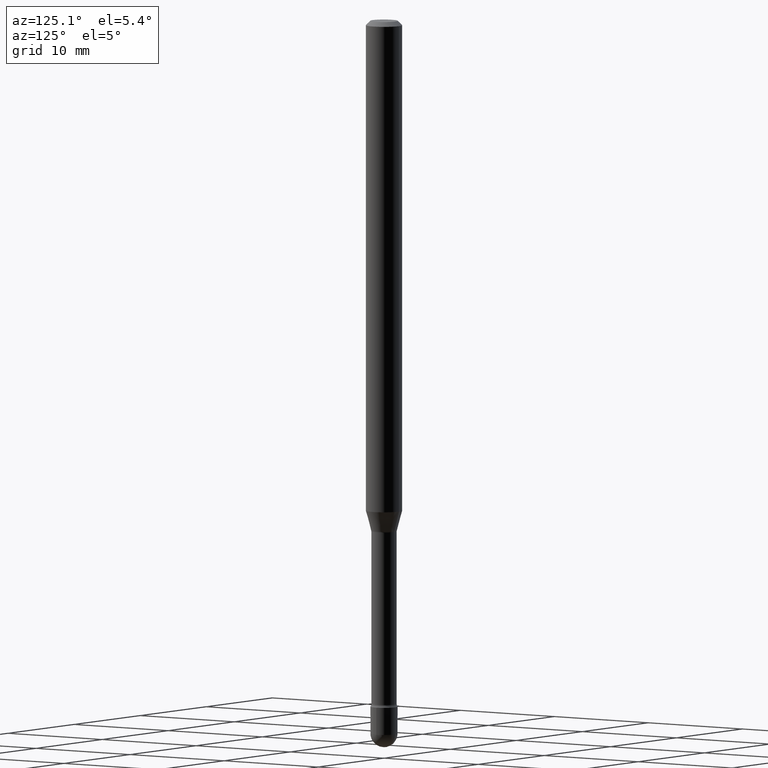
[diagram: clean part render]
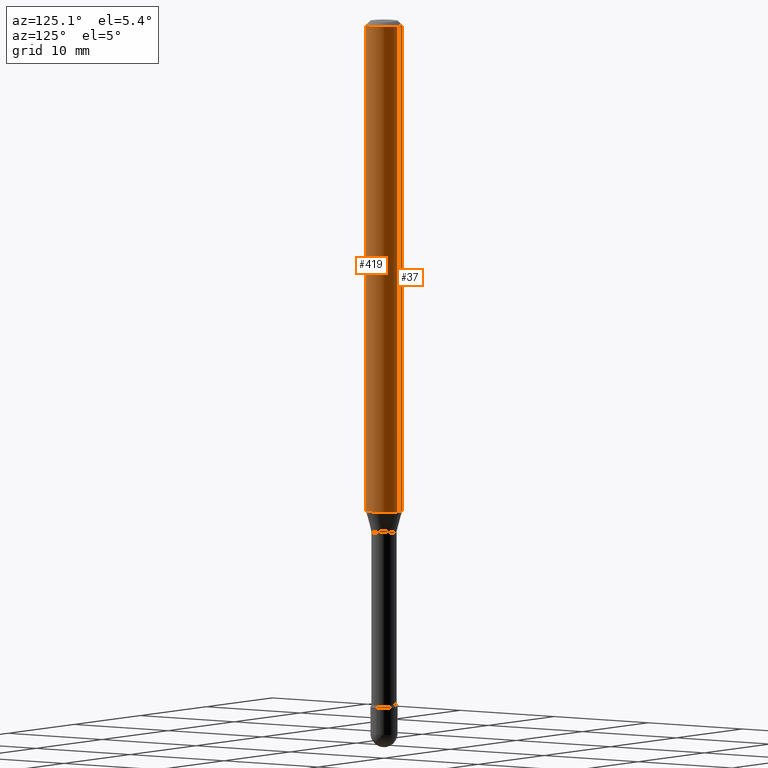
[diagram: same view with one multi-face feature highlighted, each face labeled with its STEP entity id]
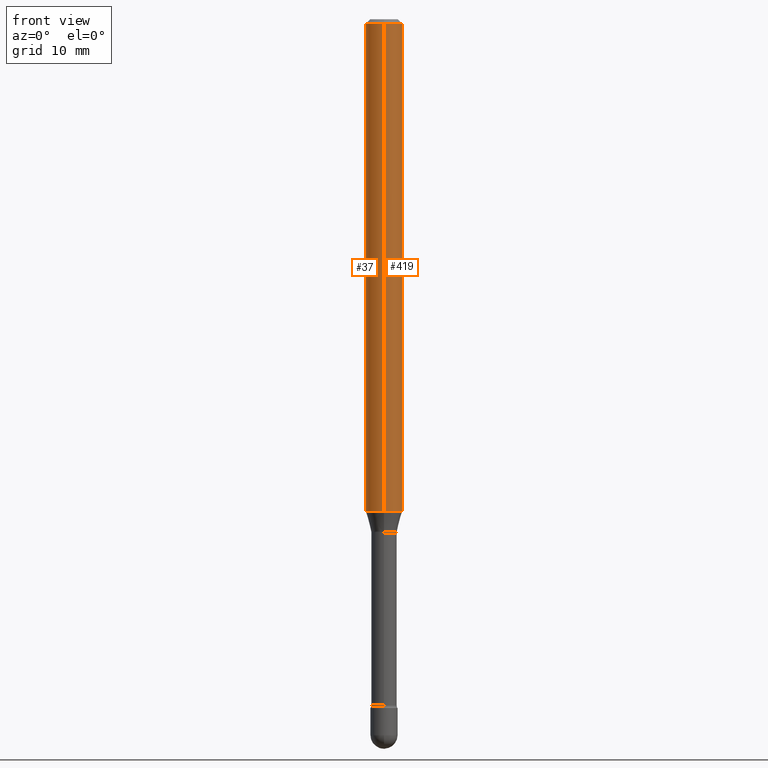
[diagram: same view with one multi-face feature highlighted, each face labeled with its STEP entity id]
A machine part, auxiliary view. The highlighted faces form ONE feature: a constant-radius fillet chain: 2 tangent blend faces with common blend radius 1.5875 mm. The faces share edges in the B-rep.
A second angle (front view) of the same feature is appended — it is thin or edge-on in the first view.
Their STEP definitions:
[1] entity #419 (Cylinder):
#15 = VERTEX_POINT ( 'NONE', #286 ) ;
#35 = DIRECTION ( 'NONE',  ( -2.445464837296052418E-29, 3.491487022518209281E-15, 1.000000000000000000 ) ) ;
#36 = DIRECTION ( 'NONE',  ( -2.445464837296052418E-29, 3.491487022518209281E-15, 1.000000000000000000 ) ) ;
#41 = DIRECTION ( 'NONE',  ( -6.982962677686265922E-15, -1.000000000000000000, 3.491487022518209281E-15 ) ) ;
#66 = EDGE_CURVE ( 'NONE', #345, #263, #504, .T. ) ;
#70 = CARTESIAN_POINT ( 'NONE',  ( 4.440892098501039328E-16, 0.06249999999999414357, -1.685837444817705588 ) ) ;
#75 = CARTESIAN_POINT ( 'NONE',  ( -4.364351673553916201E-16, -0.06250000000000000000, 6.962913377986341187E-16 ) ) ;
#79 = VECTOR ( 'NONE', #239, 39.37007874015748143 ) ;
#86 = CARTESIAN_POINT ( 'NONE',  ( -1.169113584055446105E-44, 1.669184350826100908E-30, 4.780733988912460139E-16 ) ) ;
#93 = CARTESIAN_POINT ( 'NONE',  ( 4.440892098501040314E-16, 0.06249999999999993755, -0.01500000000000030129 ) ) ;
#103 = VERTEX_POINT ( 'NONE', #93 ) ;
#110 = AXIS2_PLACEMENT_3D ( 'NONE', #155, #35, #115 ) ;
#115 = DIRECTION ( 'NONE',  ( -6.982962677686265922E-15, -1.000000000000000000, 3.483106191921935554E-15 ) ) ;
#116 = ORIENTED_EDGE ( 'NONE', *, *, #448, .T. ) ;
#118 = CARTESIAN_POINT ( 'NONE',  ( -4.364351673553502049E-16, -0.06250000000000584255, -1.685837444817705144 ) ) ;
#128 = DIRECTION ( 'NONE',  ( -6.982962677686265922E-15, -1.000000000000000000, 4.370956789862821150E-15 ) ) ;
#130 = FACE_OUTER_BOUND ( 'NONE', #221, .T. ) ;
#155 = CARTESIAN_POINT ( 'NONE',  ( 3.668197255944098613E-31, -5.237230533777343209E-17, -0.01500000000000008271 ) ) ;
#158 = DIRECTION ( 'NONE',  ( -2.445464837296052418E-29, 3.491487022518209281E-15, 1.000000000000000000 ) ) ;
#171 = ORIENTED_EDGE ( 'NONE', *, *, #466, .F. ) ;
#221 = EDGE_LOOP ( 'NONE', ( #491, #116, #171, #521 ) ) ;
#239 = DIRECTION ( 'NONE',  ( -2.445464837296052418E-29, 3.491487022518209281E-15, 1.000000000000000000 ) ) ;
#242 = VECTOR ( 'NONE', #158, 39.37007874015748143 ) ;
#263 = VERTEX_POINT ( 'NONE', #70 ) ;
#286 = CARTESIAN_POINT ( 'NONE',  ( -4.364351673553912750E-16, -0.06250000000000005551, -0.01499999999999986587 ) ) ;
#311 = EDGE_CURVE ( 'NONE', #345, #15, #415, .T. ) ;
#319 = AXIS2_PLACEMENT_3D ( 'NONE', #566, #36, #128 ) ;
#326 = AXIS2_PLACEMENT_3D ( 'NONE', #86, #470, #41 ) ;
#334 = CARTESIAN_POINT ( 'NONE',  ( 4.440892098500625669E-16, 0.06250000000000000000, 2.598554599838579585E-16 ) ) ;
#345 = VERTEX_POINT ( 'NONE', #118 ) ;
#415 = LINE ( 'NONE', #75, #79 ) ;
#419 = ADVANCED_FACE ( 'NONE', ( #130 ), #478, .T. ) ;
#448 = EDGE_CURVE ( 'NONE', #263, #103, #555, .T. ) ;
#466 = EDGE_CURVE ( 'NONE', #15, #103, #544, .T. ) ;
#470 = DIRECTION ( 'NONE',  ( -2.445464837296052418E-29, 3.491487022518209281E-15, 1.000000000000000000 ) ) ;
#478 = CYLINDRICAL_SURFACE ( 'NONE', #326, 0.06250000000000000000 ) ;
#491 = ORIENTED_EDGE ( 'NONE', *, *, #66, .T. ) ;
#504 = CIRCLE ( 'NONE', #319, 0.06250000000000000000 ) ;
#521 = ORIENTED_EDGE ( 'NONE', *, *, #311, .F. ) ;
#544 = CIRCLE ( 'NONE', #110, 0.06250000000000000000 ) ;
#555 = LINE ( 'NONE', #334, #242 ) ;
#566 = CARTESIAN_POINT ( 'NONE',  ( 4.122656192698722490E-29, -5.886079560656275937E-15, -1.685837444817705366 ) ) ;
[2] entity #37 (Cylinder):
#15 = VERTEX_POINT ( 'NONE', #286 ) ;
#37 = ADVANCED_FACE ( 'NONE', ( #106 ), #444, .T. ) ;
#59 = AXIS2_PLACEMENT_3D ( 'NONE', #274, #153, #543 ) ;
#65 = CIRCLE ( 'NONE', #59, 0.06250000000000000000 ) ;
#70 = CARTESIAN_POINT ( 'NONE',  ( 4.440892098501039328E-16, 0.06249999999999414357, -1.685837444817705588 ) ) ;
#75 = CARTESIAN_POINT ( 'NONE',  ( -4.364351673553916201E-16, -0.06250000000000000000, 6.962913377986341187E-16 ) ) ;
#79 = VECTOR ( 'NONE', #239, 39.37007874015748143 ) ;
#93 = CARTESIAN_POINT ( 'NONE',  ( 4.440892098501040314E-16, 0.06249999999999993755, -0.01500000000000030129 ) ) ;
#101 = ORIENTED_EDGE ( 'NONE', *, *, #379, .T. ) ;
#103 = VERTEX_POINT ( 'NONE', #93 ) ;
#106 = FACE_OUTER_BOUND ( 'NONE', #425, .T. ) ;
#118 = CARTESIAN_POINT ( 'NONE',  ( -4.364351673553502049E-16, -0.06250000000000584255, -1.685837444817705144 ) ) ;
#125 = DIRECTION ( 'NONE',  ( -2.445464837296052418E-29, 3.491487022518209281E-15, 1.000000000000000000 ) ) ;
#153 = DIRECTION ( 'NONE',  ( -2.445464837296052418E-29, 3.491487022518209281E-15, 1.000000000000000000 ) ) ;
#158 = DIRECTION ( 'NONE',  ( -2.445464837296052418E-29, 3.491487022518209281E-15, 1.000000000000000000 ) ) ;
#211 = ORIENTED_EDGE ( 'NONE', *, *, #311, .T. ) ;
#228 = DIRECTION ( 'NONE',  ( -6.982962677686265922E-15, -1.000000000000000000, 3.491487022518209281E-15 ) ) ;
#236 = CARTESIAN_POINT ( 'NONE',  ( -1.169113584055446105E-44, 1.669184350826100908E-30, 4.780733988912460139E-16 ) ) ;
#239 = DIRECTION ( 'NONE',  ( -2.445464837296052418E-29, 3.491487022518209281E-15, 1.000000000000000000 ) ) ;
#242 = VECTOR ( 'NONE', #158, 39.37007874015748143 ) ;
#263 = VERTEX_POINT ( 'NONE', #70 ) ;
#266 = ORIENTED_EDGE ( 'NONE', *, *, #448, .F. ) ;
#274 = CARTESIAN_POINT ( 'NONE',  ( 3.668197255944098613E-31, -5.237230533777343209E-17, -0.01500000000000008271 ) ) ;
#280 = DIRECTION ( 'NONE',  ( -2.445464837296052418E-29, 3.491487022518209281E-15, 1.000000000000000000 ) ) ;
#282 = AXIS2_PLACEMENT_3D ( 'NONE', #236, #280, #228 ) ;
#286 = CARTESIAN_POINT ( 'NONE',  ( -4.364351673553912750E-16, -0.06250000000000005551, -0.01499999999999986587 ) ) ;
#300 = DIRECTION ( 'NONE',  ( -6.982962677686265922E-15, -1.000000000000000000, 4.370956789862821150E-15 ) ) ;
#311 = EDGE_CURVE ( 'NONE', #345, #15, #415, .T. ) ;
#334 = CARTESIAN_POINT ( 'NONE',  ( 4.440892098500625669E-16, 0.06250000000000000000, 2.598554599838579585E-16 ) ) ;
#340 = CARTESIAN_POINT ( 'NONE',  ( 4.122656192698722490E-29, -5.886079560656275937E-15, -1.685837444817705366 ) ) ;
#345 = VERTEX_POINT ( 'NONE', #118 ) ;
#379 = EDGE_CURVE ( 'NONE', #263, #345, #421, .T. ) ;
#415 = LINE ( 'NONE', #75, #79 ) ;
#421 = CIRCLE ( 'NONE', #474, 0.06250000000000000000 ) ;
#425 = EDGE_LOOP ( 'NONE', ( #266, #101, #211, #482 ) ) ;
#444 = CYLINDRICAL_SURFACE ( 'NONE', #282, 0.06250000000000000000 ) ;
#448 = EDGE_CURVE ( 'NONE', #263, #103, #555, .T. ) ;
#474 = AXIS2_PLACEMENT_3D ( 'NONE', #340, #125, #300 ) ;
#482 = ORIENTED_EDGE ( 'NONE', *, *, #525, .F. ) ;
#525 = EDGE_CURVE ( 'NONE', #103, #15, #65, .T. ) ;
#543 = DIRECTION ( 'NONE',  ( -6.982962677686265922E-15, -1.000000000000000000, 3.483106191921935554E-15 ) ) ;
#555 = LINE ( 'NONE', #334, #242 ) ;